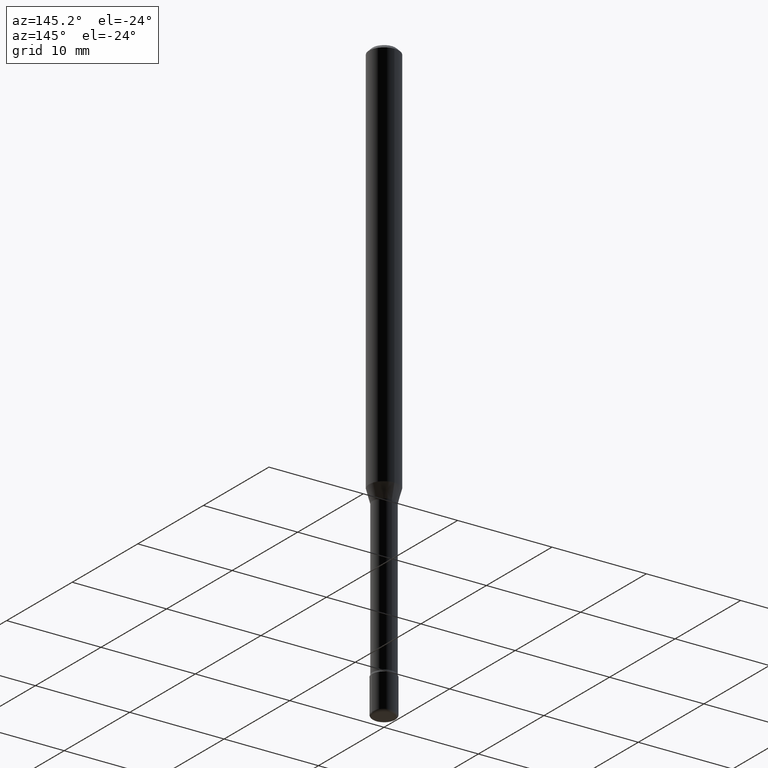
[diagram: clean part render]
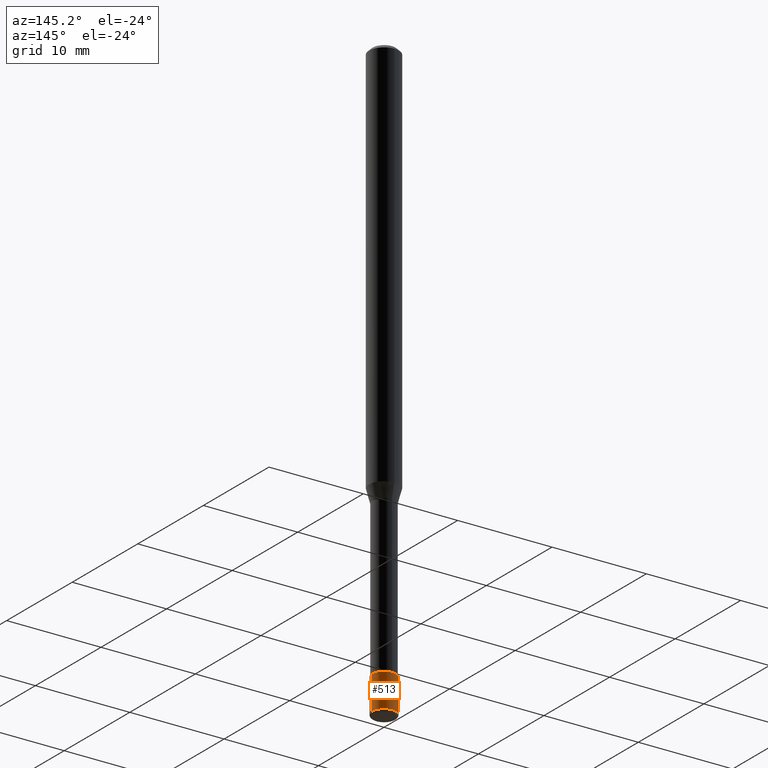
[diagram: same view with one face highlighted and labeled with its STEP entity id]
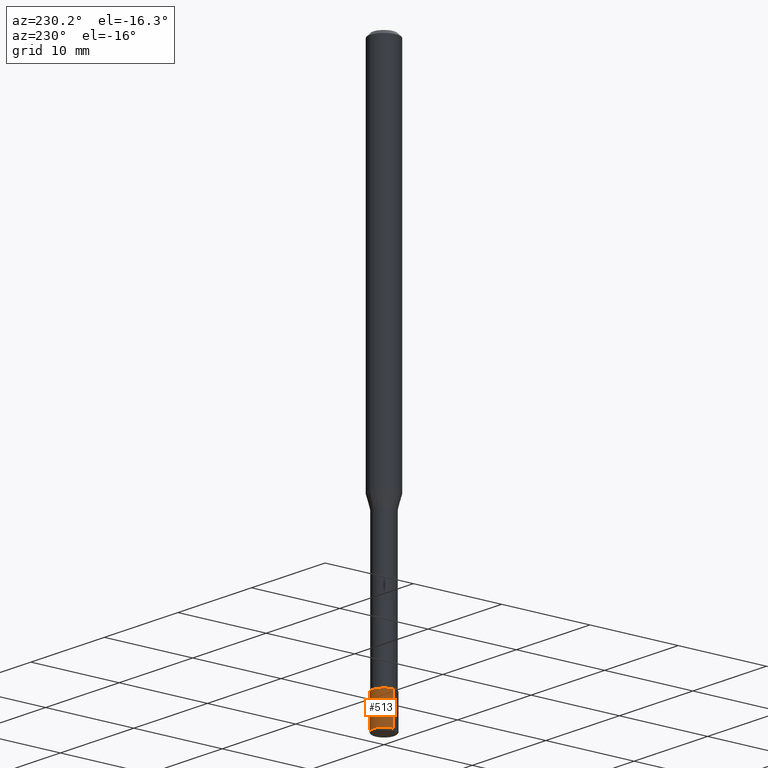
[diagram: same view with one face highlighted and labeled with its STEP entity id]
A machine part, auxiliary view. The second image highlights one B-rep face of the part: STEP entity #513.
A second angle (auxiliary view) of the same face is appended — the face is thin or edge-on in the first view.
In plain terms, the highlighted cylindrical surface (edge-blend (fillet) strip) has radius 1.27 mm, axis along (-0, 0, 1).
Its self-contained STEP definition (entity closure, byte-faithful):
#3 = DIRECTION ( 'NONE',  ( -2.445468806185136877E-29, 3.491481338843145188E-15, 1.000000000000000000 ) ) ;
#10 = VERTEX_POINT ( 'NONE', #271 ) ;
#14 = ORIENTED_EDGE ( 'NONE', *, *, #495, .F. ) ;
#26 = VECTOR ( 'NONE', #406, 39.37007874015748143 ) ;
#58 = VERTEX_POINT ( 'NONE', #309 ) ;
#61 = CYLINDRICAL_SURFACE ( 'NONE', #308, 0.05000000000000000971 ) ;
#113 = ORIENTED_EDGE ( 'NONE', *, *, #174, .F. ) ;
#131 = LINE ( 'NONE', #170, #26 ) ;
#170 = CARTESIAN_POINT ( 'NONE',  ( 0.05000000000000000971, -3.491481338843134341E-16, 2.438088387897968597E-30 ) ) ;
#174 = EDGE_CURVE ( 'NONE', #335, #447, #131, .T. ) ;
#186 = LINE ( 'NONE', #299, #410 ) ;
#188 = EDGE_CURVE ( 'NONE', #335, #10, #557, .T. ) ;
#194 = CIRCLE ( 'NONE', #231, 0.05000000000000000278 ) ;
#227 = DIRECTION ( 'NONE',  ( -2.445468806185136597E-29, 3.491481338843145583E-15, 1.000000000000000000 ) ) ;
#231 = AXIS2_PLACEMENT_3D ( 'NONE', #422, #503, #275 ) ;
#271 = CARTESIAN_POINT ( 'NONE',  ( -0.05000000000000004441, -8.338517165839381307E-15, -2.489999999999999769 ) ) ;
#275 = DIRECTION ( 'NONE',  ( 1.000000000000000000, -6.982962677686274599E-15, 0.000000000000000000 ) ) ;
#299 = CARTESIAN_POINT ( 'NONE',  ( -0.05000000000000000971, 3.552713678800501620E-16, -2.459467545127453311E-30 ) ) ;
#308 = AXIS2_PLACEMENT_3D ( 'NONE', #546, #551, #473 ) ;
#309 = CARTESIAN_POINT ( 'NONE',  ( -0.05000000000000000278, -8.094113472120361341E-15, -2.350000000000000089 ) ) ;
#312 = DIRECTION ( 'NONE',  ( 1.000000000000000000, -6.982962677686273021E-15, 0.000000000000000000 ) ) ;
#335 = VERTEX_POINT ( 'NONE', #344 ) ;
#344 = CARTESIAN_POINT ( 'NONE',  ( 0.05000000000000004441, -9.042936667603745051E-15, -2.489999999999999769 ) ) ;
#373 = ORIENTED_EDGE ( 'NONE', *, *, #188, .T. ) ;
#406 = DIRECTION ( 'NONE',  ( -2.445468806185136877E-29, 3.491481338843145188E-15, 1.000000000000000000 ) ) ;
#410 = VECTOR ( 'NONE', #3, 39.37007874015748143 ) ;
#422 = CARTESIAN_POINT ( 'NONE',  ( 5.746851694535070554E-29, -8.204981146281391784E-15, -2.350000000000000089 ) ) ;
#430 = EDGE_CURVE ( 'NONE', #10, #58, #186, .T. ) ;
#447 = VERTEX_POINT ( 'NONE', #493 ) ;
#457 = CARTESIAN_POINT ( 'NONE',  ( 6.089217327400989947E-29, -8.693788533719431716E-15, -2.489999999999999769 ) ) ;
#473 = DIRECTION ( 'NONE',  ( 1.000000000000000000, -6.982962677686267499E-15, 4.876176775795936353E-29 ) ) ;
#493 = CARTESIAN_POINT ( 'NONE',  ( 0.05000000000000000278, -8.554129280165706697E-15, -2.350000000000000089 ) ) ;
#495 = EDGE_CURVE ( 'NONE', #447, #58, #194, .T. ) ;
#503 = DIRECTION ( 'NONE',  ( -2.445468806185136597E-29, 3.491481338843145583E-15, 1.000000000000000000 ) ) ;
#504 = AXIS2_PLACEMENT_3D ( 'NONE', #457, #227, #312 ) ;
#508 = ORIENTED_EDGE ( 'NONE', *, *, #430, .T. ) ;
#513 = ADVANCED_FACE ( 'NONE', ( #516 ), #61, .T. ) ;
#516 = FACE_OUTER_BOUND ( 'NONE', #535, .T. ) ;
#535 = EDGE_LOOP ( 'NONE', ( #373, #508, #14, #113 ) ) ;
#546 = CARTESIAN_POINT ( 'NONE',  ( 0.000000000000000000, 0.000000000000000000, 0.000000000000000000 ) ) ;
#551 = DIRECTION ( 'NONE',  ( -2.445468806185136597E-29, 3.491481338843145583E-15, 1.000000000000000000 ) ) ;
#557 = CIRCLE ( 'NONE', #504, 0.05000000000000000971 ) ;